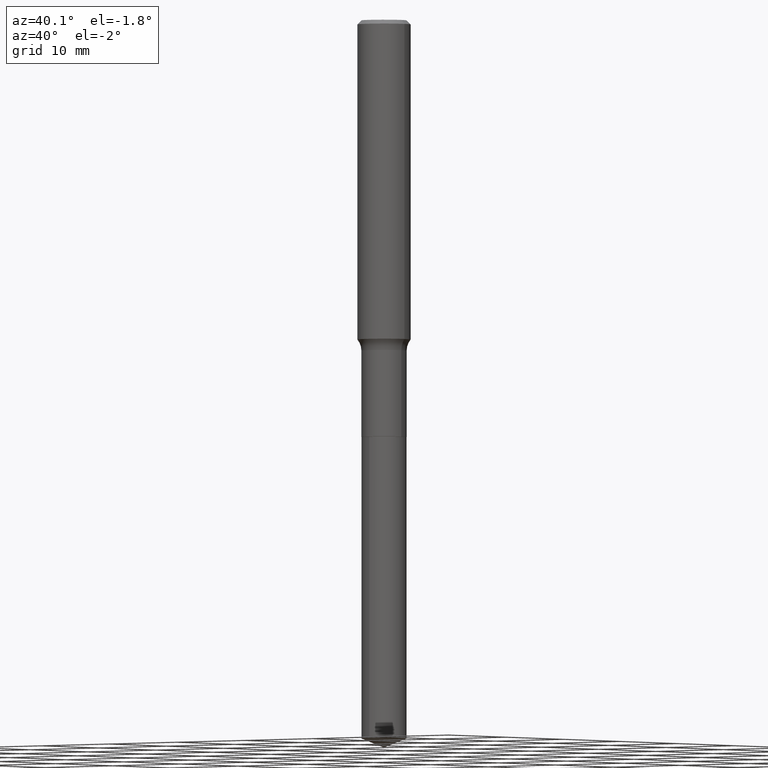
[diagram: clean part render]
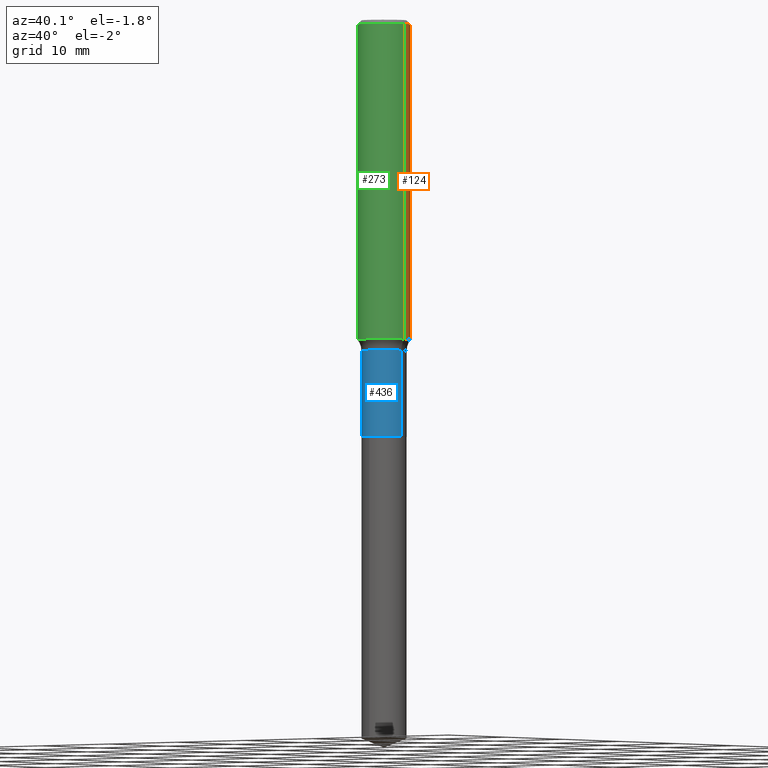
[diagram: same view with three faces highlighted in distinct colors, each labeled with its STEP entity id]
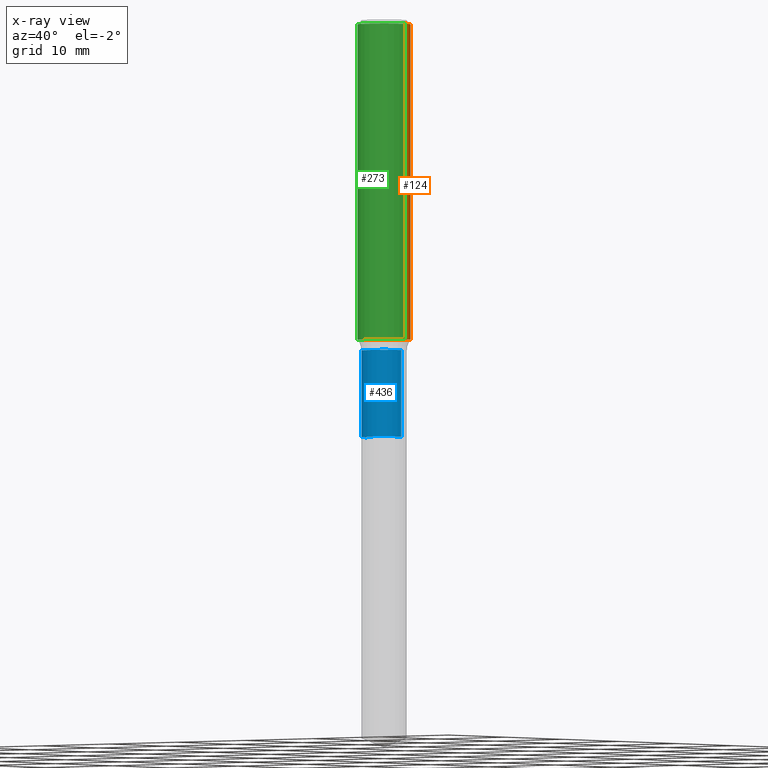
[diagram: x-ray of the same camera — body ghosted, the three highlighted faces saturated]
A machine part, auxiliary view with three faces highlighted in distinct colors.
The next image is the same camera in x-ray (body ghosted, the three faces saturated) — at least one of them is partly hidden behind the body in this view.
Their STEP definitions:

[orange] entity #124 — the highlighted cylindrical surface (edge-blend (fillet) strip) has radius 2.9997 mm, axis along (-0, 0, 1).
#15 = VECTOR ( 'NONE', #234, 39.37007874015748143 ) ;
#29 = CARTESIAN_POINT ( 'NONE',  ( 0.1180999999999999966, -8.865394841523548556E-16, -0.01771500000000011607 ) ) ;
#48 = EDGE_CURVE ( 'NONE', #239, #183, #388, .T. ) ;
#49 = AXIS2_PLACEMENT_3D ( 'NONE', #397, #60, #240 ) ;
#53 = EDGE_CURVE ( 'NONE', #183, #325, #300, .T. ) ;
#60 = DIRECTION ( 'NONE',  ( -2.445468806185136597E-29, 3.491481338843145583E-15, 1.000000000000000000 ) ) ;
#74 = VECTOR ( 'NONE', #88, 39.37007874015748143 ) ;
#80 = AXIS2_PLACEMENT_3D ( 'NONE', #466, #118, #465 ) ;
#88 = DIRECTION ( 'NONE',  ( -2.445468806185136877E-29, 3.491481338843145188E-15, 1.000000000000000000 ) ) ;
#93 = ORIENTED_EDGE ( 'NONE', *, *, #185, .T. ) ;
#118 = DIRECTION ( 'NONE',  ( -2.445468806185136597E-29, 3.491481338843145583E-15, 1.000000000000000000 ) ) ;
#124 = ADVANCED_FACE ( 'NONE', ( #317 ), #125, .T. ) ;
#125 = CYLINDRICAL_SURFACE ( 'NONE', #49, 0.1181000000000001077 ) ;
#134 = CARTESIAN_POINT ( 'NONE',  ( 3.463819832877476296E-29, -4.945416713972557188E-15, -1.416423642009541295 ) ) ;
#137 = DIRECTION ( 'NONE',  ( 1.000000000000000000, -6.982962677686268288E-15, 0.000000000000000000 ) ) ;
#138 = EDGE_LOOP ( 'NONE', ( #434, #93, #299, #165 ) ) ;
#139 = LINE ( 'NONE', #444, #74 ) ;
#165 = ORIENTED_EDGE ( 'NONE', *, *, #48, .F. ) ;
#183 = VERTEX_POINT ( 'NONE', #29 ) ;
#185 = EDGE_CURVE ( 'NONE', #293, #325, #139, .T. ) ;
#229 = CARTESIAN_POINT ( 'NONE',  ( -0.1180999999999999966, -1.664483182012402116E-15, -0.01771500000000011607 ) ) ;
#234 = DIRECTION ( 'NONE',  ( -2.445468806185136877E-29, 3.491481338843145188E-15, 1.000000000000000000 ) ) ;
#239 = VERTEX_POINT ( 'NONE', #253 ) ;
#240 = DIRECTION ( 'NONE',  ( 1.000000000000000000, -6.982962677686266711E-15, 4.876176775795935793E-29 ) ) ;
#253 = CARTESIAN_POINT ( 'NONE',  ( 0.1181000000000002187, -5.770104606207307029E-15, -1.416423642009541295 ) ) ;
#254 = AXIS2_PLACEMENT_3D ( 'NONE', #134, #283, #137 ) ;
#283 = DIRECTION ( 'NONE',  ( -2.445468806185136597E-29, 3.491481338843145583E-15, 1.000000000000000000 ) ) ;
#293 = VERTEX_POINT ( 'NONE', #342 ) ;
#299 = ORIENTED_EDGE ( 'NONE', *, *, #53, .F. ) ;
#300 = CIRCLE ( 'NONE', #80, 0.1180999999999999966 ) ;
#304 = CARTESIAN_POINT ( 'NONE',  ( 0.1181000000000001077, -8.246878922347488542E-16, 5.758764772215005345E-30 ) ) ;
#317 = FACE_OUTER_BOUND ( 'NONE', #138, .T. ) ;
#325 = VERTEX_POINT ( 'NONE', #229 ) ;
#342 = CARTESIAN_POINT ( 'NONE',  ( -0.1181000000000002187, -4.106265743039877413E-15, -1.416423642009541295 ) ) ;
#388 = LINE ( 'NONE', #304, #15 ) ;
#397 = CARTESIAN_POINT ( 'NONE',  ( 0.000000000000000000, 0.000000000000000000, 0.000000000000000000 ) ) ;
#403 = EDGE_CURVE ( 'NONE', #239, #293, #469, .T. ) ;
#434 = ORIENTED_EDGE ( 'NONE', *, *, #403, .T. ) ;
#444 = CARTESIAN_POINT ( 'NONE',  ( -0.1181000000000001077, 8.391509709326790846E-16, -5.809262341591049389E-30 ) ) ;
#465 = DIRECTION ( 'NONE',  ( 1.000000000000000000, -6.982962677686266711E-15, 0.000000000000000000 ) ) ;
#466 = CARTESIAN_POINT ( 'NONE',  ( 4.332147990156998495E-31, -6.185159191760672860E-17, -0.01771500000000011607 ) ) ;
#469 = CIRCLE ( 'NONE', #254, 0.1181000000000002048 ) ;

[blue] entity #436 — the highlighted cylindrical surface (edge-blend (fillet) strip) has radius 2.5502 mm, axis along (-0, 0, 1).
#3 = CIRCLE ( 'NONE', #365, 0.1003999999999999893 ) ;
#27 = CARTESIAN_POINT ( 'NONE',  ( -0.1003999999999999615, -5.074443708697142375E-15, -1.465899999999999981 ) ) ;
#31 = CARTESIAN_POINT ( 'NONE',  ( -0.1003999999999999893, -5.074443708697142375E-15, -1.849500000000000366 ) ) ;
#43 = DIRECTION ( 'NONE',  ( 1.000000000000000000, -6.982962677686265133E-15, 0.000000000000000000 ) ) ;
#70 = LINE ( 'NONE', #104, #225 ) ;
#76 = CARTESIAN_POINT ( 'NONE',  ( 0.1003999999999999615, -5.819251947449867977E-15, -1.465899999999999981 ) ) ;
#97 = DIRECTION ( 'NONE',  ( 1.000000000000000000, -6.982962677686263555E-15, 0.000000000000000000 ) ) ;
#104 = CARTESIAN_POINT ( 'NONE',  ( -0.1003999999999999754, 7.133849067031404116E-16, -4.938610830615923592E-30 ) ) ;
#111 = EDGE_CURVE ( 'NONE', #275, #285, #173, .T. ) ;
#127 = ORIENTED_EDGE ( 'NONE', *, *, #111, .T. ) ;
#131 = DIRECTION ( 'NONE',  ( -2.445468806185136877E-29, 3.491481338843145188E-15, 1.000000000000000000 ) ) ;
#148 = CARTESIAN_POINT ( 'NONE',  ( 3.584812722986791865E-29, -5.118162494610166900E-15, -1.465899999999999981 ) ) ;
#173 = LINE ( 'NONE', #409, #262 ) ;
#225 = VECTOR ( 'NONE', #412, 39.37007874015748143 ) ;
#226 = EDGE_CURVE ( 'NONE', #490, #275, #3, .T. ) ;
#230 = AXIS2_PLACEMENT_3D ( 'NONE', #335, #291, #448 ) ;
#262 = VECTOR ( 'NONE', #131, 39.37007874015748143 ) ;
#275 = VERTEX_POINT ( 'NONE', #381 ) ;
#285 = VERTEX_POINT ( 'NONE', #76 ) ;
#290 = DIRECTION ( 'NONE',  ( -2.445468806185136597E-29, 3.491481338843145583E-15, 1.000000000000000000 ) ) ;
#291 = DIRECTION ( 'NONE',  ( -2.445468806185136597E-29, 3.491481338843145583E-15, 1.000000000000000000 ) ) ;
#335 = CARTESIAN_POINT ( 'NONE',  ( 0.000000000000000000, 0.000000000000000000, 0.000000000000000000 ) ) ;
#338 = CIRCLE ( 'NONE', #428, 0.1003999999999999615 ) ;
#362 = EDGE_LOOP ( 'NONE', ( #374, #472, #127, #455 ) ) ;
#365 = AXIS2_PLACEMENT_3D ( 'NONE', #488, #290, #97 ) ;
#373 = EDGE_CURVE ( 'NONE', #378, #285, #338, .T. ) ;
#374 = ORIENTED_EDGE ( 'NONE', *, *, #439, .F. ) ;
#378 = VERTEX_POINT ( 'NONE', #27 ) ;
#379 = DIRECTION ( 'NONE',  ( -2.445468806185136597E-29, 3.491481338843145583E-15, 1.000000000000000000 ) ) ;
#381 = CARTESIAN_POINT ( 'NONE',  ( 0.1003999999999999893, -7.158584189030099157E-15, -1.849500000000000366 ) ) ;
#409 = CARTESIAN_POINT ( 'NONE',  ( 0.1003999999999999754, -7.010894528397009782E-16, 4.895681482899117754E-30 ) ) ;
#412 = DIRECTION ( 'NONE',  ( -2.445468806185136877E-29, 3.491481338843145188E-15, 1.000000000000000000 ) ) ;
#428 = AXIS2_PLACEMENT_3D ( 'NONE', #148, #379, #43 ) ;
#436 = ADVANCED_FACE ( 'NONE', ( #492 ), #489, .T. ) ;
#439 = EDGE_CURVE ( 'NONE', #490, #378, #70, .T. ) ;
#448 = DIRECTION ( 'NONE',  ( 1.000000000000000000, -6.982962677686266711E-15, 4.876176775795935232E-29 ) ) ;
#455 = ORIENTED_EDGE ( 'NONE', *, *, #373, .F. ) ;
#472 = ORIENTED_EDGE ( 'NONE', *, *, #226, .T. ) ;
#488 = CARTESIAN_POINT ( 'NONE',  ( 4.522894557039411136E-29, -6.457494736190398870E-15, -1.849500000000000366 ) ) ;
#489 = CYLINDRICAL_SURFACE ( 'NONE', #230, 0.1003999999999999754 ) ;
#490 = VERTEX_POINT ( 'NONE', #31 ) ;
#492 = FACE_OUTER_BOUND ( 'NONE', #362, .T. ) ;

[green] entity #273 — the highlighted cylindrical surface (edge-blend (fillet) strip) has radius 2.9997 mm, axis along (-0, 0, 1).
#15 = VECTOR ( 'NONE', #234, 39.37007874015748143 ) ;
#29 = CARTESIAN_POINT ( 'NONE',  ( 0.1180999999999999966, -8.865394841523548556E-16, -0.01771500000000011607 ) ) ;
#48 = EDGE_CURVE ( 'NONE', #239, #183, #388, .T. ) ;
#67 = DIRECTION ( 'NONE',  ( 1.000000000000000000, -6.982962677686266711E-15, 0.000000000000000000 ) ) ;
#73 = AXIS2_PLACEMENT_3D ( 'NONE', #314, #112, #424 ) ;
#74 = VECTOR ( 'NONE', #88, 39.37007874015748143 ) ;
#78 = EDGE_CURVE ( 'NONE', #293, #239, #280, .T. ) ;
#88 = DIRECTION ( 'NONE',  ( -2.445468806185136877E-29, 3.491481338843145188E-15, 1.000000000000000000 ) ) ;
#95 = DIRECTION ( 'NONE',  ( -2.445468806185136597E-29, 3.491481338843145583E-15, 1.000000000000000000 ) ) ;
#107 = ORIENTED_EDGE ( 'NONE', *, *, #185, .F. ) ;
#112 = DIRECTION ( 'NONE',  ( -2.445468806185136597E-29, 3.491481338843145583E-15, 1.000000000000000000 ) ) ;
#139 = LINE ( 'NONE', #444, #74 ) ;
#159 = CIRCLE ( 'NONE', #271, 0.1180999999999999966 ) ;
#183 = VERTEX_POINT ( 'NONE', #29 ) ;
#185 = EDGE_CURVE ( 'NONE', #293, #325, #139, .T. ) ;
#192 = FACE_OUTER_BOUND ( 'NONE', #289, .T. ) ;
#228 = CARTESIAN_POINT ( 'NONE',  ( 0.000000000000000000, 0.000000000000000000, 0.000000000000000000 ) ) ;
#229 = CARTESIAN_POINT ( 'NONE',  ( -0.1180999999999999966, -1.664483182012402116E-15, -0.01771500000000011607 ) ) ;
#232 = AXIS2_PLACEMENT_3D ( 'NONE', #228, #302, #264 ) ;
#234 = DIRECTION ( 'NONE',  ( -2.445468806185136877E-29, 3.491481338843145188E-15, 1.000000000000000000 ) ) ;
#239 = VERTEX_POINT ( 'NONE', #253 ) ;
#253 = CARTESIAN_POINT ( 'NONE',  ( 0.1181000000000002187, -5.770104606207307029E-15, -1.416423642009541295 ) ) ;
#264 = DIRECTION ( 'NONE',  ( 1.000000000000000000, -6.982962677686266711E-15, 4.876176775795935793E-29 ) ) ;
#268 = CYLINDRICAL_SURFACE ( 'NONE', #232, 0.1181000000000001077 ) ;
#271 = AXIS2_PLACEMENT_3D ( 'NONE', #333, #95, #67 ) ;
#273 = ADVANCED_FACE ( 'NONE', ( #192 ), #268, .T. ) ;
#280 = CIRCLE ( 'NONE', #73, 0.1181000000000002048 ) ;
#289 = EDGE_LOOP ( 'NONE', ( #107, #487, #337, #369 ) ) ;
#293 = VERTEX_POINT ( 'NONE', #342 ) ;
#302 = DIRECTION ( 'NONE',  ( -2.445468806185136597E-29, 3.491481338843145583E-15, 1.000000000000000000 ) ) ;
#304 = CARTESIAN_POINT ( 'NONE',  ( 0.1181000000000001077, -8.246878922347488542E-16, 5.758764772215005345E-30 ) ) ;
#314 = CARTESIAN_POINT ( 'NONE',  ( 3.463819832877476296E-29, -4.945416713972557188E-15, -1.416423642009541295 ) ) ;
#325 = VERTEX_POINT ( 'NONE', #229 ) ;
#333 = CARTESIAN_POINT ( 'NONE',  ( 4.332147990156998495E-31, -6.185159191760672860E-17, -0.01771500000000011607 ) ) ;
#337 = ORIENTED_EDGE ( 'NONE', *, *, #48, .T. ) ;
#342 = CARTESIAN_POINT ( 'NONE',  ( -0.1181000000000002187, -4.106265743039877413E-15, -1.416423642009541295 ) ) ;
#369 = ORIENTED_EDGE ( 'NONE', *, *, #421, .F. ) ;
#388 = LINE ( 'NONE', #304, #15 ) ;
#421 = EDGE_CURVE ( 'NONE', #325, #183, #159, .T. ) ;
#424 = DIRECTION ( 'NONE',  ( 1.000000000000000000, -6.982962677686268288E-15, 0.000000000000000000 ) ) ;
#444 = CARTESIAN_POINT ( 'NONE',  ( -0.1181000000000001077, 8.391509709326790846E-16, -5.809262341591049389E-30 ) ) ;
#487 = ORIENTED_EDGE ( 'NONE', *, *, #78, .T. ) ;